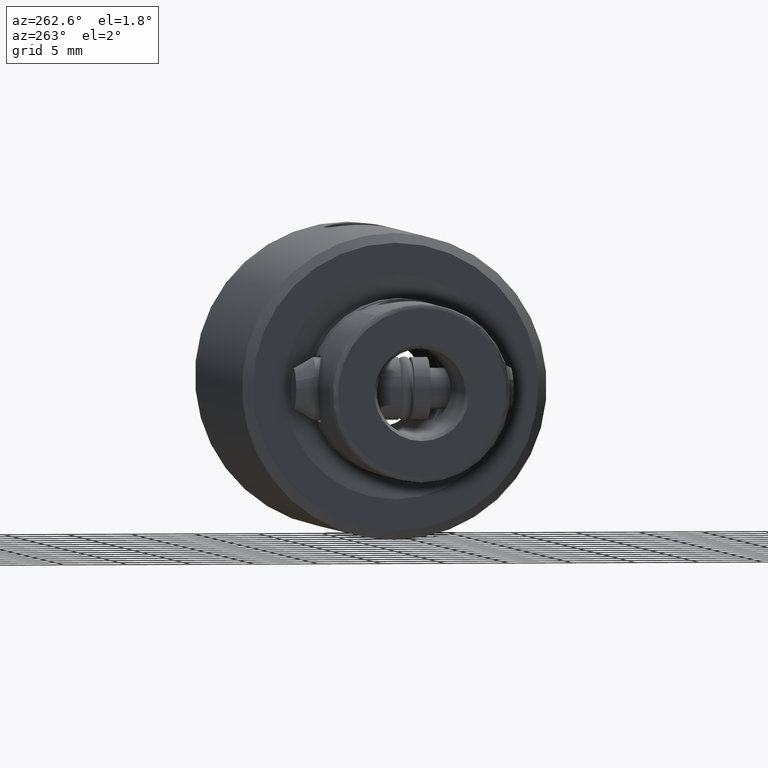
[diagram: clean part render]
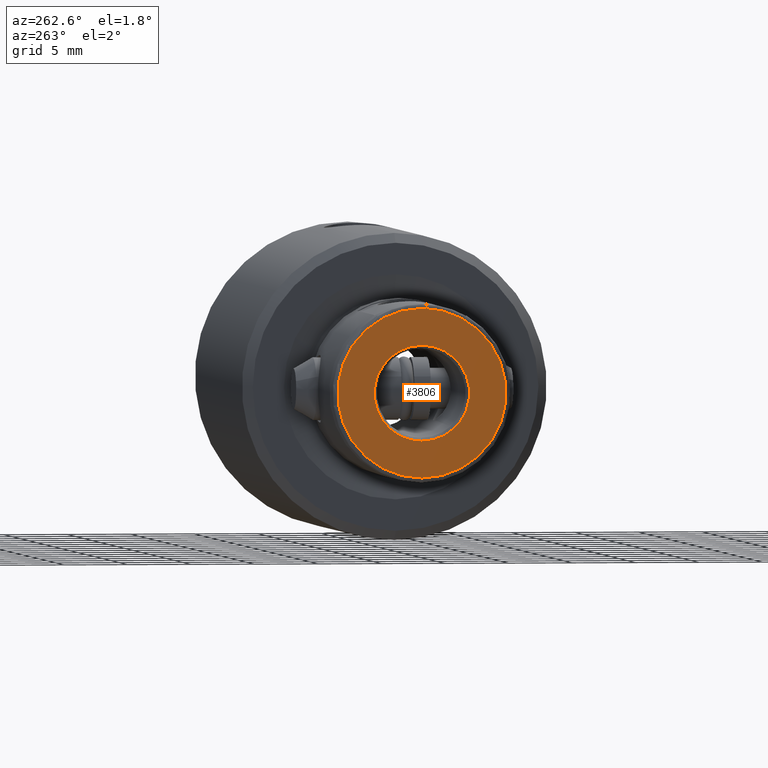
[diagram: same view with one face highlighted and labeled with its STEP entity id]
A machine part, auxiliary view. The second image highlights one B-rep face of the part: STEP entity #3806.
In plain terms, the highlighted planar face has unit normal (-1, 0, -0).
Its self-contained STEP definition (entity closure, byte-faithful):
#18 = DIRECTION ( 'NONE',  ( 1.000000000000000000, 0.0000000000000000000, 0.0000000000000000000 ) ) ;
#24 = AXIS2_PLACEMENT_3D ( 'NONE', #2080, #2423, #2737 ) ;
#56 = DIRECTION ( 'NONE',  ( 1.000000000000000000, 0.0000000000000000000, 0.0000000000000000000 ) ) ;
#66 = EDGE_CURVE ( 'NONE', #3779, #3243, #1831, .T. ) ;
#162 = ORIENTED_EDGE ( 'NONE', *, *, #3121, .T. ) ;
#320 = EDGE_LOOP ( 'NONE', ( #2671, #1034 ) ) ;
#352 = CARTESIAN_POINT ( 'NONE',  ( -3.750000000000004000, 4.592425496802578900E-016, 46.00000000000000000 ) ) ;
#372 = FACE_BOUND ( 'NONE', #320, .T. ) ;
#442 = ORIENTED_EDGE ( 'NONE', *, *, #66, .T. ) ;
#494 = CARTESIAN_POINT ( 'NONE',  ( 6.629190075645206900, 8.345472000554884100E-016, 46.00000000000000000 ) ) ;
#999 = EDGE_CURVE ( 'NONE', #3811, #1203, #3633, .T. ) ;
#1034 = ORIENTED_EDGE ( 'NONE', *, *, #999, .T. ) ;
#1162 = AXIS2_PLACEMENT_3D ( 'NONE', #3989, #2034, #56 ) ;
#1203 = VERTEX_POINT ( 'NONE', #2285 ) ;
#1301 = CARTESIAN_POINT ( 'NONE',  ( 0.0000000000000000000, 0.0000000000000000000, 46.00000000000000000 ) ) ;
#1476 = AXIS2_PLACEMENT_3D ( 'NONE', #1650, #1593, #3247 ) ;
#1553 = CIRCLE ( 'NONE', #1162, 6.629190075645206900 ) ;
#1593 = DIRECTION ( 'NONE',  ( 0.0000000000000000000, 0.0000000000000000000, 1.000000000000000000 ) ) ;
#1633 = DIRECTION ( 'NONE',  ( 1.000000000000000000, 0.0000000000000000000, 0.0000000000000000000 ) ) ;
#1650 = CARTESIAN_POINT ( 'NONE',  ( 0.0000000000000000000, 0.0000000000000000000, 46.00000000000000000 ) ) ;
#1655 = PLANE ( 'NONE',  #2241 ) ;
#1705 = EDGE_CURVE ( 'NONE', #1203, #3811, #2905, .T. ) ;
#1831 = CIRCLE ( 'NONE', #1476, 6.629190075645206900 ) ;
#1872 = EDGE_LOOP ( 'NONE', ( #442, #162 ) ) ;
#1995 = DIRECTION ( 'NONE',  ( 0.0000000000000000000, 0.0000000000000000000, 1.000000000000000000 ) ) ;
#2034 = DIRECTION ( 'NONE',  ( 0.0000000000000000000, 0.0000000000000000000, 1.000000000000000000 ) ) ;
#2080 = CARTESIAN_POINT ( 'NONE',  ( 0.0000000000000000000, 0.0000000000000000000, 46.00000000000000000 ) ) ;
#2241 = AXIS2_PLACEMENT_3D ( 'NONE', #2654, #1995, #18 ) ;
#2285 = CARTESIAN_POINT ( 'NONE',  ( 3.750000000000004000, 0.0000000000000000000, 46.00000000000000000 ) ) ;
#2423 = DIRECTION ( 'NONE',  ( -0.0000000000000000000, -0.0000000000000000000, -1.000000000000000000 ) ) ;
#2654 = CARTESIAN_POINT ( 'NONE',  ( 0.0000000000000000000, 0.0000000000000000000, 46.00000000000000000 ) ) ;
#2671 = ORIENTED_EDGE ( 'NONE', *, *, #1705, .T. ) ;
#2737 = DIRECTION ( 'NONE',  ( 1.000000000000000000, 0.0000000000000000000, 0.0000000000000000000 ) ) ;
#2806 = AXIS2_PLACEMENT_3D ( 'NONE', #1301, #3604, #1633 ) ;
#2905 = CIRCLE ( 'NONE', #2806, 3.750000000000004000 ) ;
#2912 = FACE_OUTER_BOUND ( 'NONE', #1872, .T. ) ;
#3121 = EDGE_CURVE ( 'NONE', #3243, #3779, #1553, .T. ) ;
#3243 = VERTEX_POINT ( 'NONE', #494 ) ;
#3247 = DIRECTION ( 'NONE',  ( 1.000000000000000000, 0.0000000000000000000, 0.0000000000000000000 ) ) ;
#3604 = DIRECTION ( 'NONE',  ( -0.0000000000000000000, -0.0000000000000000000, -1.000000000000000000 ) ) ;
#3613 = CARTESIAN_POINT ( 'NONE',  ( -6.629190075645206900, 0.0000000000000000000, 46.00000000000000000 ) ) ;
#3633 = CIRCLE ( 'NONE', #24, 3.750000000000004000 ) ;
#3779 = VERTEX_POINT ( 'NONE', #3613 ) ;
#3806 = ADVANCED_FACE ( 'NONE', ( #372, #2912 ), #1655, .T. ) ;
#3811 = VERTEX_POINT ( 'NONE', #352 ) ;
#3989 = CARTESIAN_POINT ( 'NONE',  ( 0.0000000000000000000, 0.0000000000000000000, 46.00000000000000000 ) ) ;